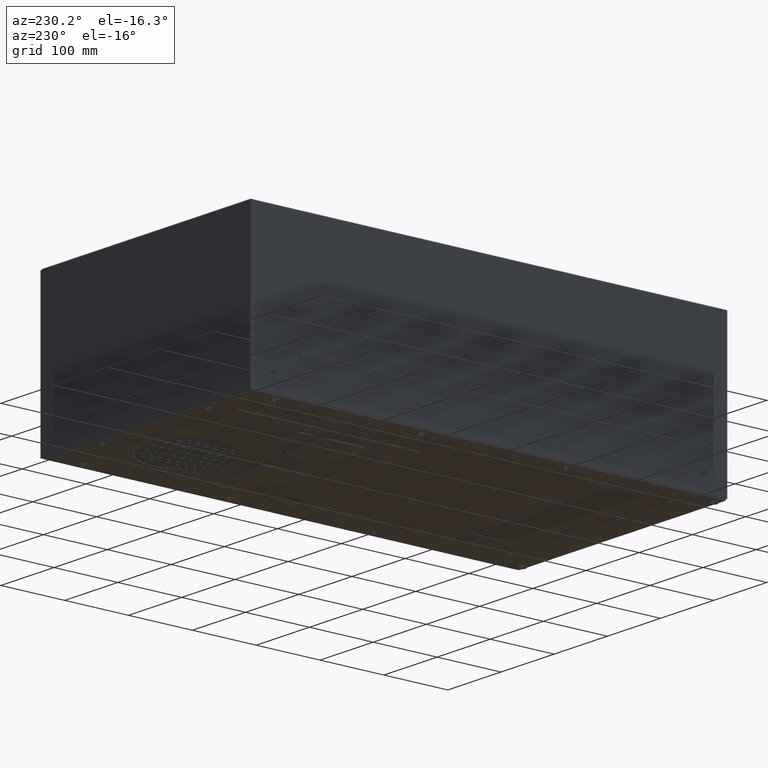
[diagram: clean part render]
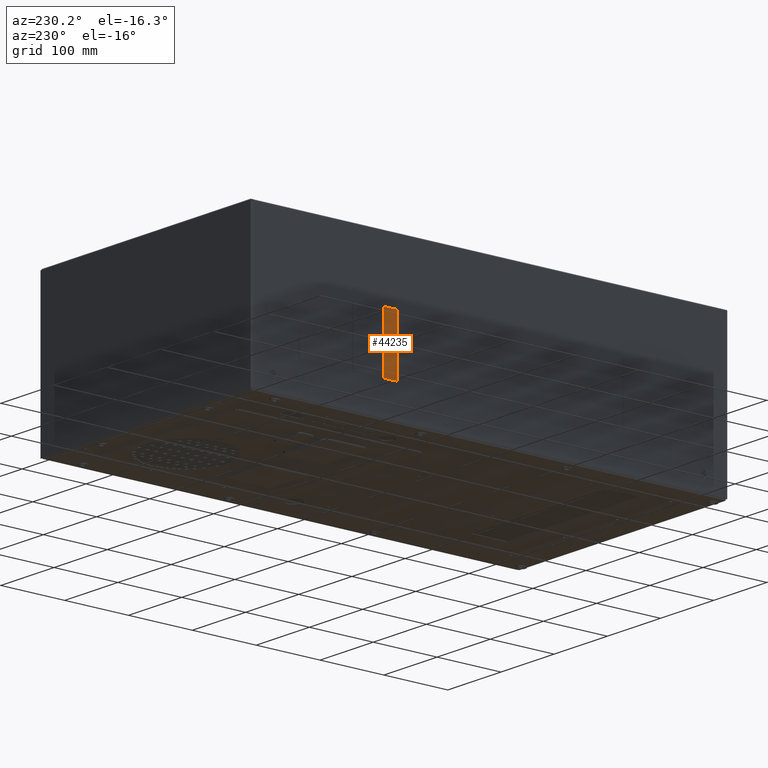
[diagram: same view with one face highlighted and labeled with its STEP entity id]
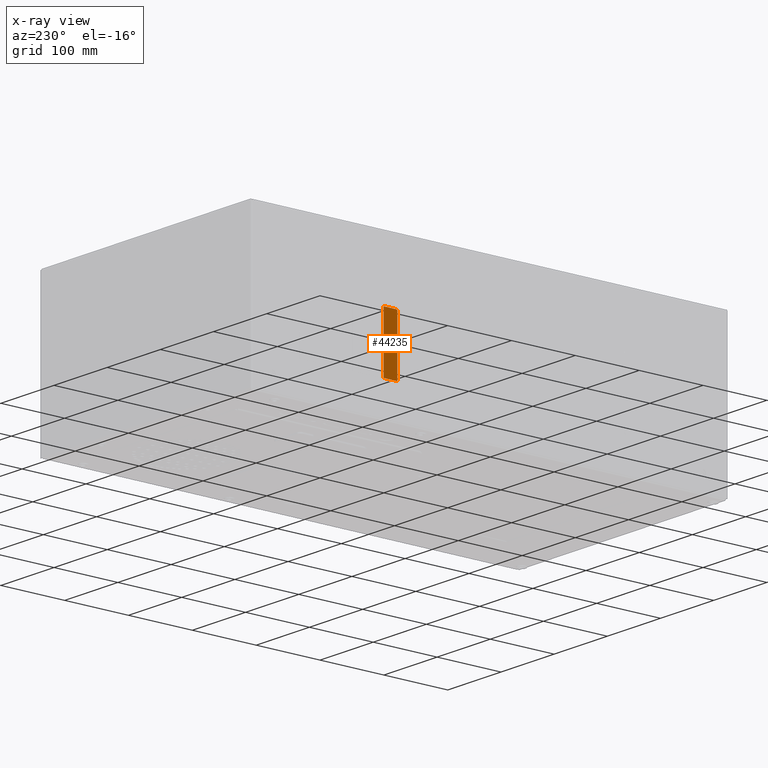
[diagram: x-ray of the same camera — body ghosted, the highlighted face saturated]
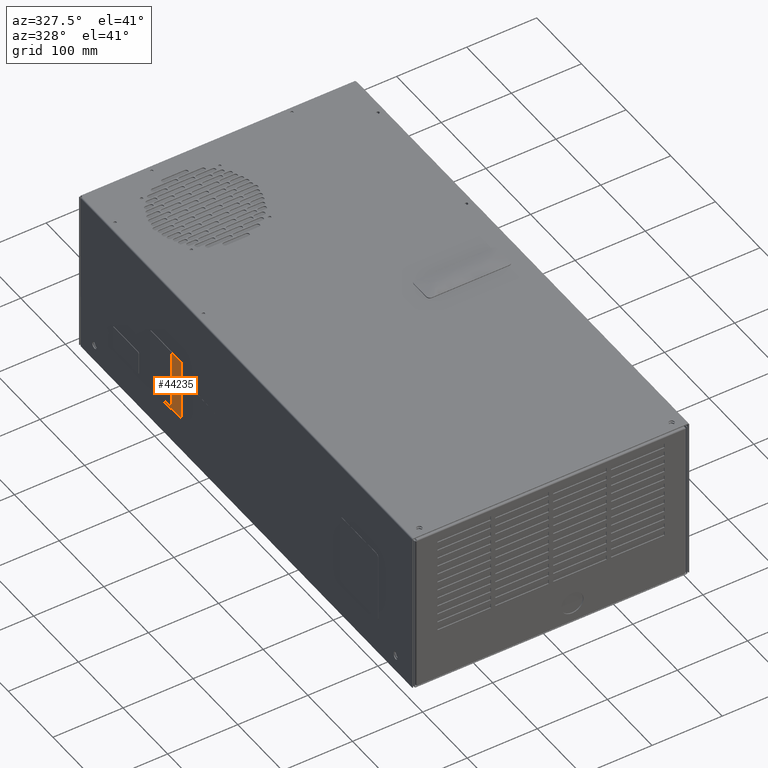
[diagram: same view with one face highlighted and labeled with its STEP entity id]
A machine part, auxiliary view. The second image highlights one B-rep face of the part: STEP entity #44235.
The next image is the same camera in x-ray: the body ghosted, the highlighted face saturated — about 0% of this face is hidden behind the body in this view.
A second angle (auxiliary view) of the same face is appended — the face is thin or edge-on in the first view.
In plain terms, the highlighted planar face has unit normal (1, 0, 0).
Its self-contained STEP definition (entity closure, byte-faithful):
#139 = CARTESIAN_POINT ( 'NONE',  ( -7.795275590551181466, 5.659404197838409090, 0.8118181102362459489 ) ) ;
#1969 = DIRECTION ( 'NONE',  ( 0.000000000000000000, -1.000000000000000000, -1.389133320033180069E-14 ) ) ;
#3666 = CARTESIAN_POINT ( 'NONE',  ( -7.795275590551181466, 5.659404197838409090, 0.8118181102362459489 ) ) ;
#4972 = CARTESIAN_POINT ( 'NONE',  ( -7.795275590551181466, 5.737750654531322603, 0.8118181102362480583 ) ) ;
#5958 = DIRECTION ( 'NONE',  ( 0.000000000000000000, 1.000000000000000000, 1.391066095212824273E-14 ) ) ;
#6182 = EDGE_CURVE ( 'NONE', #58248, #19099, #22874, .T. ) ;
#7874 = FACE_OUTER_BOUND ( 'NONE', #22251, .T. ) ;
#8953 = VERTEX_POINT ( 'NONE', #43651 ) ;
#10695 = CARTESIAN_POINT ( 'NONE',  ( -7.795275590551181466, 8.336175851381712576, 0.8901645669291968765 ) ) ;
#12886 = ORIENTED_EDGE ( 'NONE', *, *, #33710, .T. ) ;
#16619 = DIRECTION ( 'NONE',  ( 0.000000000000000000, -1.394752543498936428E-14, 1.000000000000000000 ) ) ;
#19099 = VERTEX_POINT ( 'NONE', #59932 ) ;
#20519 = LINE ( 'NONE', #10695, #65709 ) ;
#21284 = AXIS2_PLACEMENT_3D ( 'NONE', #44411, #29506, #22774 ) ;
#22251 = EDGE_LOOP ( 'NONE', ( #33893, #12886, #48563, #65134, #45800, #61655 ) ) ;
#22452 = EDGE_CURVE ( 'NONE', #64321, #58248, #24943, .T. ) ;
#22774 = DIRECTION ( 'NONE',  ( 0.000000000000000000, 1.000000000000000000, 0.000000000000000000 ) ) ;
#22818 = VECTOR ( 'NONE', #39956, 39.37007874015748143 ) ;
#22874 = CIRCLE ( 'NONE', #36919, 0.07834645669291333270 ) ;
#23761 = PLANE ( 'NONE',  #21284 ) ;
#23974 = VECTOR ( 'NONE', #60450, 39.37007874015748143 ) ;
#24716 = LINE ( 'NONE', #65607, #22818 ) ;
#24943 = LINE ( 'NONE', #3666, #23974 ) ;
#25577 = DIRECTION ( 'NONE',  ( -1.000000000000000000, 0.000000000000000000, 0.000000000000000000 ) ) ;
#26135 = CARTESIAN_POINT ( 'NONE',  ( -7.795275590551181466, 6.506628607287283650, -2.652355118110196752 ) ) ;
#27507 = EDGE_CURVE ( 'NONE', #37662, #34339, #24716, .T. ) ;
#27755 = AXIS2_PLACEMENT_3D ( 'NONE', #45414, #62927, #16619 ) ;
#28958 = CARTESIAN_POINT ( 'NONE',  ( -7.795275590551181466, 5.737750654531377670, -2.652355118110236276 ) ) ;
#29506 = DIRECTION ( 'NONE',  ( 1.000000000000000000, 0.000000000000000000, 0.000000000000000000 ) ) ;
#33710 = EDGE_CURVE ( 'NONE', #37662, #8953, #34025, .T. ) ;
#33893 = ORIENTED_EDGE ( 'NONE', *, *, #27507, .F. ) ;
#34025 = LINE ( 'NONE', #28958, #42325 ) ;
#34339 = VERTEX_POINT ( 'NONE', #51171 ) ;
#36919 = AXIS2_PLACEMENT_3D ( 'NONE', #4972, #25577, #56687 ) ;
#37662 = VERTEX_POINT ( 'NONE', #26135 ) ;
#38566 = CIRCLE ( 'NONE', #27755, 0.07834645669291361025 ) ;
#39956 = DIRECTION ( 'NONE',  ( 0.000000000000000000, -1.391066095212824273E-14, 1.000000000000000000 ) ) ;
#42325 = VECTOR ( 'NONE', #1969, 39.37007874015748143 ) ;
#43233 = CARTESIAN_POINT ( 'NONE',  ( -7.795275590551181466, 5.659404197838465045, -2.574008661417323207 ) ) ;
#43651 = CARTESIAN_POINT ( 'NONE',  ( -7.795275590551181466, 5.737750654531377670, -2.652355118110236276 ) ) ;
#44235 = ADVANCED_FACE ( 'NONE', ( #7874 ), #23761, .F. ) ;
#44397 = EDGE_CURVE ( 'NONE', #8953, #64321, #38566, .T. ) ;
#44411 = CARTESIAN_POINT ( 'NONE',  ( -7.795275590551181466, 8.336175851381771196, -2.574008661417259702 ) ) ;
#45414 = CARTESIAN_POINT ( 'NONE',  ( -7.795275590551181466, 5.737750654531377670, -2.574008661417323207 ) ) ;
#45800 = ORIENTED_EDGE ( 'NONE', *, *, #6182, .T. ) ;
#48563 = ORIENTED_EDGE ( 'NONE', *, *, #44397, .T. ) ;
#51171 = CARTESIAN_POINT ( 'NONE',  ( -7.795275590551181466, 6.506628607287225030, 0.8901645669291713414 ) ) ;
#56687 = DIRECTION ( 'NONE',  ( 0.000000000000000000, -1.394752543498941318E-14, 1.000000000000000000 ) ) ;
#58248 = VERTEX_POINT ( 'NONE', #139 ) ;
#59932 = CARTESIAN_POINT ( 'NONE',  ( -7.795275590551181466, 5.737750654531322603, 0.8901645669291614604 ) ) ;
#60450 = DIRECTION ( 'NONE',  ( 0.000000000000000000, -1.391095642873775845E-14, 1.000000000000000000 ) ) ;
#61655 = ORIENTED_EDGE ( 'NONE', *, *, #62294, .T. ) ;
#62294 = EDGE_CURVE ( 'NONE', #19099, #34339, #20519, .T. ) ;
#62927 = DIRECTION ( 'NONE',  ( -1.000000000000000000, 0.000000000000000000, 0.000000000000000000 ) ) ;
#64321 = VERTEX_POINT ( 'NONE', #43233 ) ;
#65134 = ORIENTED_EDGE ( 'NONE', *, *, #22452, .T. ) ;
#65607 = CARTESIAN_POINT ( 'NONE',  ( -7.795275590551181466, 6.506628607287225030, 0.8905582677165728711 ) ) ;
#65709 = VECTOR ( 'NONE', #5958, 39.37007874015748143 ) ;